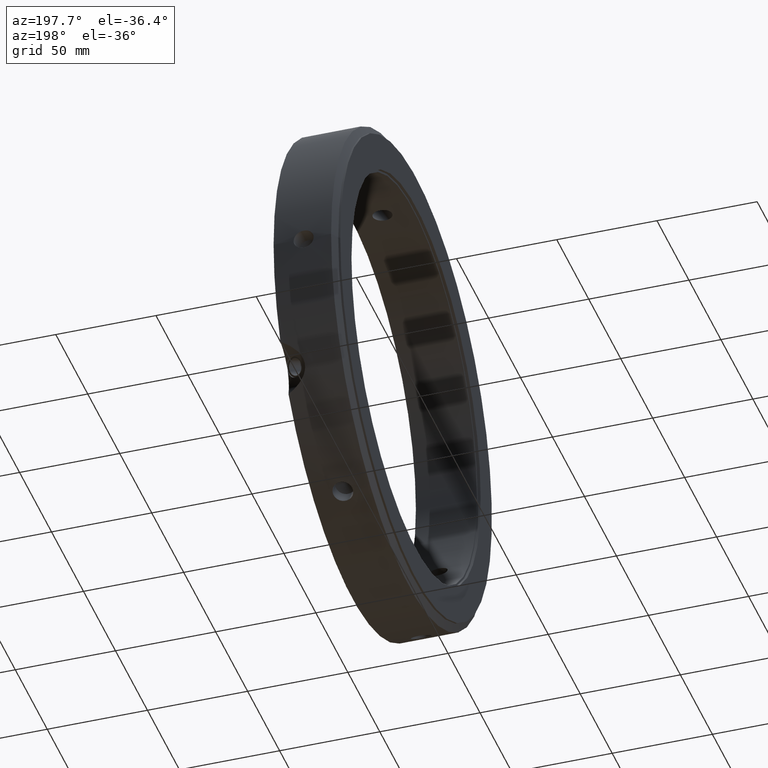
[diagram: clean part render]
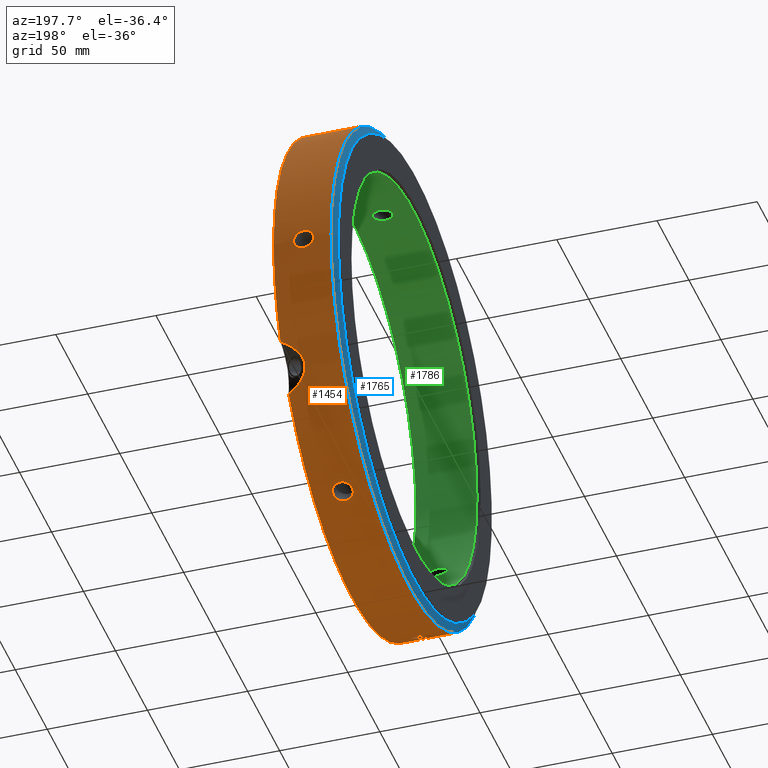
[diagram: same view with three faces highlighted in distinct colors, each labeled with its STEP entity id]
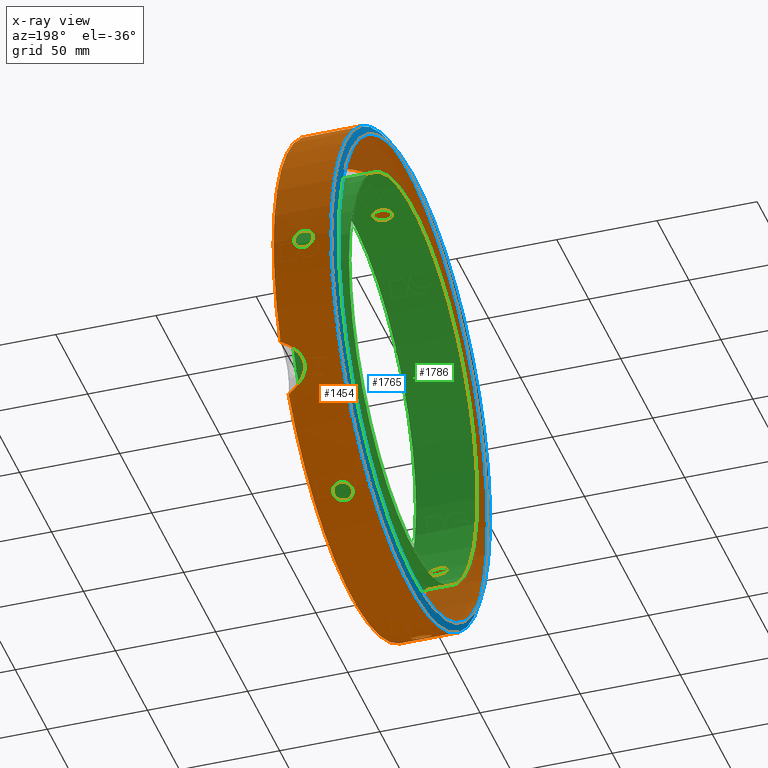
[diagram: x-ray of the same camera — body ghosted, the three highlighted faces saturated]
A machine part, auxiliary view with three faces highlighted in distinct colors.
The next image is the same camera in x-ray (body ghosted, the three faces saturated) — at least one of them is partly hidden behind the body in this view.
Their STEP definitions:

[orange] entity #1454 — the highlighted cylindrical surface (bore or boss wall) has radius 122.5 mm, axis along (1, 0, 0).
#152=CARTESIAN_POINT('',(11.999999999999977,61.250000000000099,106.08811196359368));
#153=VERTEX_POINT('',#152);
#154=CARTESIAN_POINT('',(21.999999999999975,61.250000000000107,106.08811196359368));
#155=VERTEX_POINT('',#154);
#156=CARTESIAN_POINT('',(11.999999999999977,61.250000000000107,106.08811196359368));
#157=CARTESIAN_POINT('',(11.999999999999977,61.79376517006024,105.77416899628349));
#158=CARTESIAN_POINT('',(12.125497419132332,62.371071950348352,105.43471371437946));
#159=CARTESIAN_POINT('',(12.635787448514456,63.428285494341168,104.80210909861688));
#160=CARTESIAN_POINT('',(13.020576197856379,63.908335067154887,104.50919534400404));
#161=CARTESIAN_POINT('',(13.908356031886274,64.664358287820875,104.04310630583957));
#162=CARTESIAN_POINT('',(14.470548014876421,64.990769629346204,103.83888989503696));
#163=CARTESIAN_POINT('',(15.702424050025297,65.423065611710101,103.56706849989109));
#164=CARTESIAN_POINT('',(16.372114006524537,65.529085343390534,103.49970518826922));
#165=CARTESIAN_POINT('',(17.627885993475417,65.529085343390534,103.49970518826922));
#166=CARTESIAN_POINT('',(18.297575949974657,65.423065611710101,103.56706849989109));
#167=CARTESIAN_POINT('',(19.529451985123533,64.990769629346204,103.83888989503696));
#168=CARTESIAN_POINT('',(20.091643968113676,64.664358287820875,104.04310630583957));
#169=CARTESIAN_POINT('',(20.979423802143572,63.908335067154894,104.50919534400406));
#170=CARTESIAN_POINT('',(21.364212551485497,63.428285494341168,104.80210909861688));
#171=CARTESIAN_POINT('',(21.874502580867627,62.371071950348345,105.43471371437947));
#172=CARTESIAN_POINT('',(21.999999999999975,61.79376517006024,105.77416899628349));
#173=CARTESIAN_POINT('',(21.999999999999975,61.250000000000107,106.08811196359368));
#174=B_SPLINE_CURVE_WITH_KNOTS('',3,(#156,#157,#158,#159,#160,#161,#162,#163,#164,#165,#166,#167,#168,#169,#170,#171,#172,#173),.UNSPECIFIED.,.F.,.U.,(4,2,2,2,2,2,2,2,4),(0.753463156857462,0.941828937243562,1.130194717629661,1.318560515672293,1.506926313714925,1.695292111757557,1.883657909800189,2.072023690186288,2.260389470572388),.UNSPECIFIED.);
#175=EDGE_CURVE('',#153,#155,#174,.T.);
#177=CARTESIAN_POINT('',(21.999999999999975,61.250000000000099,106.08811196359368));
#178=CARTESIAN_POINT('',(21.999999999999975,60.706234829939959,106.40205493090384));
#179=CARTESIAN_POINT('',(21.874502580867631,60.123604542218203,106.73228962745833));
#180=CARTESIAN_POINT('',(21.364212551485501,59.047146102420108,107.33156110589979));
#181=CARTESIAN_POINT('',(20.979423802143575,58.553450563400631,107.60083935372592));
#182=CARTESIAN_POINT('',(20.091643968113679,57.771794005591772,108.02253014959135));
#183=CARTESIAN_POINT('',(19.529451985123533,57.431731735204366,108.20310245803432));
#184=CARTESIAN_POINT('',(18.297575949974657,56.980179510533972,108.44157106314248));
#185=CARTESIAN_POINT('',(17.627885993475417,56.868831305546152,108.49970518826922));
#186=CARTESIAN_POINT('',(16.999999999999979,56.868831305546152,108.49970518826922));
#187=CARTESIAN_POINT('',(16.372114006524537,56.868831305546152,108.49970518826922));
#188=CARTESIAN_POINT('',(15.702424050025297,56.980179510533972,108.44157106314248));
#189=CARTESIAN_POINT('',(14.470548014876421,57.431731735204366,108.20310245803432));
#190=CARTESIAN_POINT('',(13.908356031886274,57.771794005591772,108.02253014959135));
#191=CARTESIAN_POINT('',(13.020576197856384,58.553450563400631,107.60083935372592));
#192=CARTESIAN_POINT('',(12.63578744851446,59.047146102420093,107.33156110589981));
#193=CARTESIAN_POINT('',(12.125497419132326,60.123604542218196,106.73228962745833));
#194=CARTESIAN_POINT('',(11.999999999999977,60.706234829939973,106.40205493090384));
#195=CARTESIAN_POINT('',(11.999999999999977,61.250000000000107,106.08811196359368));
#196=B_SPLINE_CURVE_WITH_KNOTS('',3,(#177,#178,#179,#180,#181,#182,#183,#184,#185,#186,#187,#188,#189,#190,#191,#192,#193,#194,#195),.UNSPECIFIED.,.F.,.U.,(4,2,2,2,3,2,2,2,4),(2.260389470572388,2.448755250958487,2.637121031344586,2.825486829387218,3.01385262742985,3.202218425472482,3.390584223515115,3.578950003901213,3.767315784287312),.UNSPECIFIED.);
#197=EDGE_CURVE('',#155,#153,#196,.T.);
#306=CARTESIAN_POINT('',(11.999999999999977,122.49999999999997,-8.160139E-014));
#307=VERTEX_POINT('',#306);
#308=CARTESIAN_POINT('',(21.999999999999975,122.49999999999997,-7.993606E-014));
#309=VERTEX_POINT('',#308);
#310=CARTESIAN_POINT('',(11.999999999999977,122.5,-7.313594E-014));
#311=CARTESIAN_POINT('',(11.999999999999977,122.5,-0.627885934620404));
#312=CARTESIAN_POINT('',(12.125497419132326,122.49467649256636,-1.297575913078934));
#313=CARTESIAN_POINT('',(12.635787448514456,122.47543159676107,-2.529452007282982));
#314=CARTESIAN_POINT('',(13.020576197856379,122.46178563055531,-3.09164400972195));
#315=CARTESIAN_POINT('',(13.908356031886271,122.43615229341245,-3.979423843751845));
#316=CARTESIAN_POINT('',(14.470548014876417,122.42250136455034,-4.364212562997444));
#317=CARTESIAN_POINT('',(15.702424050025295,122.40324512224387,-4.874502563251466));
#318=CARTESIAN_POINT('',(16.372114006524537,122.39791664893647,-5.000000000000073));
#319=CARTESIAN_POINT('',(17.627885993475417,122.39791664893647,-5.000000000000073));
#320=CARTESIAN_POINT('',(18.297575949974657,122.40324512224387,-4.874502563251466));
#321=CARTESIAN_POINT('',(19.529451985123533,122.42250136455034,-4.364212562997445));
#322=CARTESIAN_POINT('',(20.091643968113679,122.43615229341245,-3.979423843751846));
#323=CARTESIAN_POINT('',(20.979423802143575,122.46178563055531,-3.091644009721954));
#324=CARTESIAN_POINT('',(21.364212551485497,122.47543159676107,-2.529452007282985));
#325=CARTESIAN_POINT('',(21.874502580867627,122.49467649256636,-1.297575913078937));
#326=CARTESIAN_POINT('',(21.999999999999979,122.5,-0.627885934620406));
#327=CARTESIAN_POINT('',(21.999999999999979,122.5,-7.452372E-014));
#328=B_SPLINE_CURVE_WITH_KNOTS('',3,(#310,#311,#312,#313,#314,#315,#316,#317,#318,#319,#320,#321,#322,#323,#324,#325,#326,#327),.UNSPECIFIED.,.F.,.U.,(4,2,2,2,2,2,2,2,4),(0.753463156857463,0.941828937243562,1.130194717629661,1.318560515672294,1.506926313714926,1.695292111757558,1.883657909800189,2.072023690186289,2.260389470572388),.UNSPECIFIED.);
#329=EDGE_CURVE('',#307,#309,#328,.T.);
#331=CARTESIAN_POINT('',(21.999999999999979,122.5,-7.494005E-014));
#332=CARTESIAN_POINT('',(21.999999999999979,122.5,0.627885934620257));
#333=CARTESIAN_POINT('',(21.874502580867627,122.49467649256638,1.297575913078788));
#334=CARTESIAN_POINT('',(21.364212551485497,122.47543159676111,2.529452007282835));
#335=CARTESIAN_POINT('',(20.979423802143575,122.46178563055531,3.091644009721803));
#336=CARTESIAN_POINT('',(20.091643968113679,122.43615229341245,3.979423843751698));
#337=CARTESIAN_POINT('',(19.529451985123533,122.42250136455034,4.364212562997297));
#338=CARTESIAN_POINT('',(18.297575949974657,122.40324512224387,4.874502563251318));
#339=CARTESIAN_POINT('',(17.627885993475417,122.39791664893647,4.999999999999926));
#340=CARTESIAN_POINT('',(16.999999999999979,122.39791664893647,4.999999999999926));
#341=CARTESIAN_POINT('',(16.372114006524537,122.39791664893647,4.999999999999926));
#342=CARTESIAN_POINT('',(15.702424050025297,122.40324512224387,4.874502563251318));
#343=CARTESIAN_POINT('',(14.470548014876421,122.42250136455034,4.364212562997298));
#344=CARTESIAN_POINT('',(13.908356031886274,122.43615229341245,3.979423843751698));
#345=CARTESIAN_POINT('',(13.020576197856379,122.46178563055531,3.091644009721804));
#346=CARTESIAN_POINT('',(12.635787448514456,122.47543159676111,2.529452007282837));
#347=CARTESIAN_POINT('',(12.125497419132326,122.49467649256638,1.297575913078788));
#348=CARTESIAN_POINT('',(11.999999999999977,122.5,0.627885934620258));
#349=CARTESIAN_POINT('',(11.999999999999977,122.5,-7.341350E-014));
#350=B_SPLINE_CURVE_WITH_KNOTS('',3,(#331,#332,#333,#334,#335,#336,#337,#338,#339,#340,#341,#342,#343,#344,#345,#346,#347,#348,#349),.UNSPECIFIED.,.F.,.U.,(4,2,2,2,3,2,2,2,4),(2.260389470572388,2.448755250958488,2.637121031344587,2.825486829387219,3.013852627429851,3.202218425472483,3.390584223515115,3.578950003901214,3.767315784287314),.UNSPECIFIED.);
#351=EDGE_CURVE('',#309,#307,#350,.T.);
#460=CARTESIAN_POINT('',(11.999999999999977,61.249999999999964,-106.08811196359375));
#461=VERTEX_POINT('',#460);
#462=CARTESIAN_POINT('',(21.999999999999975,61.249999999999943,-106.08811196359375));
#463=VERTEX_POINT('',#462);
#464=CARTESIAN_POINT('',(11.999999999999975,61.249999999999972,-106.08811196359376));
#465=CARTESIAN_POINT('',(11.999999999999975,60.706234829939838,-106.40205493090392));
#466=CARTESIAN_POINT('',(12.125497419132326,60.123604542218061,-106.7322896274584));
#467=CARTESIAN_POINT('',(12.635787448514455,59.047146102419966,-107.33156110589987));
#468=CARTESIAN_POINT('',(13.020576197856379,58.553450563400503,-107.60083935372599));
#469=CARTESIAN_POINT('',(13.908356031886274,57.771794005591637,-108.02253014959143));
#470=CARTESIAN_POINT('',(14.470548014876421,57.431731735204217,-108.20310245803442));
#471=CARTESIAN_POINT('',(15.7024240500253,56.980179510533816,-108.44157106314258));
#472=CARTESIAN_POINT('',(16.372114006524537,56.868831305546017,-108.4997051882693));
#473=CARTESIAN_POINT('',(17.627885993475413,56.868831305546017,-108.4997051882693));
#474=CARTESIAN_POINT('',(18.29757594997465,56.98017951053383,-108.44157106314258));
#475=CARTESIAN_POINT('',(19.529451985123526,57.431731735204217,-108.20310245803442));
#476=CARTESIAN_POINT('',(20.091643968113672,57.77179400559163,-108.02253014959143));
#477=CARTESIAN_POINT('',(20.979423802143572,58.553450563400503,-107.60083935372599));
#478=CARTESIAN_POINT('',(21.364212551485497,59.047146102419966,-107.33156110589987));
#479=CARTESIAN_POINT('',(21.874502580867627,60.123604542218068,-106.7322896274584));
#480=CARTESIAN_POINT('',(21.999999999999975,60.706234829939831,-106.40205493090393));
#481=CARTESIAN_POINT('',(21.999999999999975,61.249999999999964,-106.08811196359376));
#482=B_SPLINE_CURVE_WITH_KNOTS('',3,(#464,#465,#466,#467,#468,#469,#470,#471,#472,#473,#474,#475,#476,#477,#478,#479,#480,#481),.UNSPECIFIED.,.F.,.U.,(4,2,2,2,2,2,2,2,4),(0.753463156857464,0.941828937243563,1.130194717629662,1.318560515672294,1.506926313714926,1.695292111757558,1.88365790980019,2.07202369018629,2.260389470572389),.UNSPECIFIED.);
#483=EDGE_CURVE('',#461,#463,#482,.T.);
#485=CARTESIAN_POINT('',(21.999999999999975,61.249999999999964,-106.08811196359376));
#486=CARTESIAN_POINT('',(21.999999999999975,61.793765170060098,-105.77416899628359));
#487=CARTESIAN_POINT('',(21.874502580867627,62.371071950348231,-105.43471371437957));
#488=CARTESIAN_POINT('',(21.364212551485497,63.428285494341054,-104.80210909861697));
#489=CARTESIAN_POINT('',(20.979423802143575,63.908335067154766,-104.50919534400411));
#490=CARTESIAN_POINT('',(20.091643968113679,64.664358287820747,-104.04310630583964));
#491=CARTESIAN_POINT('',(19.529451985123536,64.990769629346062,-103.83888989503703));
#492=CARTESIAN_POINT('',(18.297575949974657,65.423065611709973,-103.56706849989116));
#493=CARTESIAN_POINT('',(17.627885993475417,65.529085343390406,-103.49970518826929));
#494=CARTESIAN_POINT('',(16.999999999999979,65.529085343390406,-103.49970518826929));
#495=CARTESIAN_POINT('',(16.372114006524537,65.529085343390406,-103.49970518826929));
#496=CARTESIAN_POINT('',(15.702424050025297,65.423065611709973,-103.56706849989116));
#497=CARTESIAN_POINT('',(14.470548014876419,64.990769629346062,-103.83888989503703));
#498=CARTESIAN_POINT('',(13.908356031886274,64.664358287820747,-104.04310630583964));
#499=CARTESIAN_POINT('',(13.020576197856379,63.908335067154752,-104.5091953440041));
#500=CARTESIAN_POINT('',(12.635787448514462,63.428285494341068,-104.80210909861697));
#501=CARTESIAN_POINT('',(12.12549741913233,62.371071950348238,-105.43471371437957));
#502=CARTESIAN_POINT('',(11.999999999999979,61.793765170060119,-105.77416899628358));
#503=CARTESIAN_POINT('',(11.999999999999979,61.249999999999972,-106.08811196359375));
#504=B_SPLINE_CURVE_WITH_KNOTS('',3,(#485,#486,#487,#488,#489,#490,#491,#492,#493,#494,#495,#496,#497,#498,#499,#500,#501,#502,#503),.UNSPECIFIED.,.F.,.U.,(4,2,2,2,3,2,2,2,4),(2.260389470572389,2.448755250958489,2.637121031344589,2.825486829387221,3.013852627429853,3.202218425472485,3.390584223515117,3.578950003901217,3.767315784287317),.UNSPECIFIED.);
#505=EDGE_CURVE('',#463,#461,#504,.T.);
#614=CARTESIAN_POINT('',(11.999999999999977,-61.250000000000028,-106.08811196359369));
#615=VERTEX_POINT('',#614);
#616=CARTESIAN_POINT('',(21.999999999999975,-61.250000000000036,-106.08811196359369));
#617=VERTEX_POINT('',#616);
#618=CARTESIAN_POINT('',(11.999999999999977,-61.250000000000036,-106.0881119635937));
#619=CARTESIAN_POINT('',(11.999999999999977,-61.793765170060183,-105.77416899628354));
#620=CARTESIAN_POINT('',(12.125497419132333,-62.371071950348302,-105.43471371437948));
#621=CARTESIAN_POINT('',(12.63578744851446,-63.428285494341111,-104.80210909861691));
#622=CARTESIAN_POINT('',(13.020576197856379,-63.908335067154837,-104.5091953440041));
#623=CARTESIAN_POINT('',(13.908356031886274,-64.664358287820818,-104.04310630583964));
#624=CARTESIAN_POINT('',(14.470548014876421,-64.990769629346119,-103.838889895037));
#625=CARTESIAN_POINT('',(15.702424050025297,-65.42306561171003,-103.56706849989112));
#626=CARTESIAN_POINT('',(16.372114006524537,-65.529085343390477,-103.49970518826925));
#627=CARTESIAN_POINT('',(17.627885993475417,-65.529085343390477,-103.49970518826925));
#628=CARTESIAN_POINT('',(18.297575949974657,-65.42306561171003,-103.56706849989112));
#629=CARTESIAN_POINT('',(19.529451985123533,-64.990769629346119,-103.838889895037));
#630=CARTESIAN_POINT('',(20.091643968113679,-64.664358287820818,-104.04310630583964));
#631=CARTESIAN_POINT('',(20.979423802143575,-63.908335067154837,-104.5091953440041));
#632=CARTESIAN_POINT('',(21.364212551485497,-63.428285494341111,-104.80210909861691));
#633=CARTESIAN_POINT('',(21.874502580867624,-62.371071950348302,-105.43471371437948));
#634=CARTESIAN_POINT('',(21.999999999999975,-61.793765170060183,-105.77416899628354));
#635=CARTESIAN_POINT('',(21.999999999999975,-61.250000000000036,-106.0881119635937));
#636=B_SPLINE_CURVE_WITH_KNOTS('',3,(#618,#619,#620,#621,#622,#623,#624,#625,#626,#627,#628,#629,#630,#631,#632,#633,#634,#635),.UNSPECIFIED.,.F.,.U.,(4,2,2,2,2,2,2,2,4),(0.753463156857463,0.941828937243562,1.130194717629662,1.318560515672294,1.506926313714927,1.695292111757559,1.883657909800191,2.072023690186291,2.26038947057239),.UNSPECIFIED.);
#637=EDGE_CURVE('',#615,#617,#636,.T.);
#639=CARTESIAN_POINT('',(21.999999999999975,-61.250000000000043,-106.0881119635937));
#640=CARTESIAN_POINT('',(21.999999999999975,-60.706234829939902,-106.40205493090389));
#641=CARTESIAN_POINT('',(21.874502580867627,-60.123604542218132,-106.7322896274584));
#642=CARTESIAN_POINT('',(21.364212551485494,-59.047146102420037,-107.33156110589987));
#643=CARTESIAN_POINT('',(20.979423802143575,-58.553450563400574,-107.60083935372599));
#644=CARTESIAN_POINT('',(20.091643968113679,-57.771794005591715,-108.02253014959142));
#645=CARTESIAN_POINT('',(19.529451985123533,-57.431731735204295,-108.20310245803435));
#646=CARTESIAN_POINT('',(18.297575949974657,-56.980179510533901,-108.4415710631425));
#647=CARTESIAN_POINT('',(17.627885993475417,-56.868831305546088,-108.49970518826925));
#648=CARTESIAN_POINT('',(16.999999999999979,-56.868831305546088,-108.49970518826925));
#649=CARTESIAN_POINT('',(16.372114006524537,-56.868831305546088,-108.49970518826925));
#650=CARTESIAN_POINT('',(15.702424050025297,-56.980179510533901,-108.4415710631425));
#651=CARTESIAN_POINT('',(14.470548014876421,-57.431731735204295,-108.20310245803435));
#652=CARTESIAN_POINT('',(13.908356031886274,-57.771794005591715,-108.02253014959142));
#653=CARTESIAN_POINT('',(13.020576197856379,-58.553450563400574,-107.60083935372599));
#654=CARTESIAN_POINT('',(12.635787448514455,-59.047146102420044,-107.33156110589982));
#655=CARTESIAN_POINT('',(12.125497419132325,-60.123604542218146,-106.73228962745837));
#656=CARTESIAN_POINT('',(11.999999999999975,-60.706234829939888,-106.40205493090389));
#657=CARTESIAN_POINT('',(11.999999999999975,-61.250000000000036,-106.0881119635937));
#658=B_SPLINE_CURVE_WITH_KNOTS('',3,(#639,#640,#641,#642,#643,#644,#645,#646,#647,#648,#649,#650,#651,#652,#653,#654,#655,#656,#657),.UNSPECIFIED.,.F.,.U.,(4,2,2,2,3,2,2,2,4),(2.26038947057239,2.44875525095849,2.63712103134459,2.825486829387221,3.013852627429853,3.202218425472485,3.390584223515116,3.578950003901216,3.767315784287316),.UNSPECIFIED.);
#659=EDGE_CURVE('',#617,#615,#658,.T.);
#768=CARTESIAN_POINT('',(11.999999999999977,-122.49999999999999,3.400058E-014));
#769=VERTEX_POINT('',#768);
#770=CARTESIAN_POINT('',(21.999999999999975,-122.49999999999999,2.664535E-014));
#771=VERTEX_POINT('',#770);
#772=CARTESIAN_POINT('',(11.999999999999977,-122.5,3.594347E-014));
#773=CARTESIAN_POINT('',(11.999999999999977,-122.5,0.627885934620368));
#774=CARTESIAN_POINT('',(12.125497419132326,-122.49467649256638,1.297575913078897));
#775=CARTESIAN_POINT('',(12.635787448514456,-122.47543159676111,2.529452007282946));
#776=CARTESIAN_POINT('',(13.020576197856379,-122.46178563055531,3.091644009721914));
#777=CARTESIAN_POINT('',(13.908356031886274,-122.43615229341245,3.979423843751808));
#778=CARTESIAN_POINT('',(14.470548014876421,-122.42250136455034,4.364212562997409));
#779=CARTESIAN_POINT('',(15.702424050025297,-122.40324512224387,4.874502563251429));
#780=CARTESIAN_POINT('',(16.372114006524537,-122.39791664893647,5.000000000000036));
#781=CARTESIAN_POINT('',(17.627885993475417,-122.39791664893647,5.000000000000036));
#782=CARTESIAN_POINT('',(18.297575949974657,-122.40324512224387,4.874502563251429));
#783=CARTESIAN_POINT('',(19.529451985123533,-122.42250136455034,4.364212562997409));
#784=CARTESIAN_POINT('',(20.091643968113679,-122.43615229341245,3.97942384375181));
#785=CARTESIAN_POINT('',(20.979423802143575,-122.46178563055531,3.091644009721915));
#786=CARTESIAN_POINT('',(21.364212551485497,-122.47543159676111,2.529452007282948));
#787=CARTESIAN_POINT('',(21.874502580867627,-122.49467649256638,1.2975759130789));
#788=CARTESIAN_POINT('',(21.999999999999979,-122.5,0.627885934620369));
#789=CARTESIAN_POINT('',(21.999999999999979,-122.5,3.719247E-014));
#790=B_SPLINE_CURVE_WITH_KNOTS('',3,(#772,#773,#774,#775,#776,#777,#778,#779,#780,#781,#782,#783,#784,#785,#786,#787,#788,#789),.UNSPECIFIED.,.F.,.U.,(4,2,2,2,2,2,2,2,4),(0.753463156857463,0.941828937243562,1.130194717629662,1.318560515672294,1.506926313714926,1.695292111757558,1.88365790980019,2.072023690186289,2.260389470572389),.UNSPECIFIED.);
#791=EDGE_CURVE('',#769,#771,#790,.T.);
#793=CARTESIAN_POINT('',(21.999999999999979,-122.5,3.830269E-014));
#794=CARTESIAN_POINT('',(21.999999999999979,-122.5,-0.627885934620293));
#795=CARTESIAN_POINT('',(21.874502580867627,-122.49467649256638,-1.297575913078825));
#796=CARTESIAN_POINT('',(21.364212551485497,-122.47543159676111,-2.529452007282873));
#797=CARTESIAN_POINT('',(20.979423802143575,-122.46178563055531,-3.091644009721841));
#798=CARTESIAN_POINT('',(20.091643968113679,-122.43615229341245,-3.979423843751734));
#799=CARTESIAN_POINT('',(19.529451985123536,-122.42250136455034,-4.364212562997333));
#800=CARTESIAN_POINT('',(18.297575949974661,-122.40324512224387,-4.874502563251355));
#801=CARTESIAN_POINT('',(17.627885993475417,-122.39791664893647,-4.999999999999965));
#802=CARTESIAN_POINT('',(16.999999999999979,-122.39791664893647,-4.999999999999964));
#803=CARTESIAN_POINT('',(16.372114006524537,-122.39791664893647,-4.999999999999964));
#804=CARTESIAN_POINT('',(15.702424050025297,-122.40324512224387,-4.874502563251355));
#805=CARTESIAN_POINT('',(14.470548014876421,-122.42250136455034,-4.364212562997335));
#806=CARTESIAN_POINT('',(13.908356031886274,-122.43615229341245,-3.979423843751736));
#807=CARTESIAN_POINT('',(13.020576197856379,-122.46178563055531,-3.091644009721843));
#808=CARTESIAN_POINT('',(12.635787448514456,-122.47543159676111,-2.529452007282873));
#809=CARTESIAN_POINT('',(12.125497419132326,-122.49467649256638,-1.297575913078825));
#810=CARTESIAN_POINT('',(11.999999999999977,-122.5,-0.627885934620295));
#811=CARTESIAN_POINT('',(11.999999999999977,-122.5,3.622103E-014));
#812=B_SPLINE_CURVE_WITH_KNOTS('',3,(#793,#794,#795,#796,#797,#798,#799,#800,#801,#802,#803,#804,#805,#806,#807,#808,#809,#810,#811),.UNSPECIFIED.,.F.,.U.,(4,2,2,2,3,2,2,2,4),(2.260389470572389,2.448755250958488,2.637121031344587,2.825486829387219,3.013852627429851,3.202218425472483,3.390584223515115,3.578950003901214,3.767315784287314),.UNSPECIFIED.);
#813=EDGE_CURVE('',#771,#769,#812,.T.);
#932=CARTESIAN_POINT('',(11.999999999999977,-61.249999999999986,106.08811196359372));
#933=VERTEX_POINT('',#932);
#934=CARTESIAN_POINT('',(21.999999999999975,-61.249999999999972,106.08811196359372));
#935=VERTEX_POINT('',#934);
#936=CARTESIAN_POINT('',(11.999999999999977,-61.249999999999972,106.08811196359376));
#937=CARTESIAN_POINT('',(11.999999999999977,-60.706234829939838,106.40205493090393));
#938=CARTESIAN_POINT('',(12.12549741913233,-60.123604542218075,106.73228962745841));
#939=CARTESIAN_POINT('',(12.635787448514453,-59.047146102419994,107.33156110589988));
#940=CARTESIAN_POINT('',(13.020576197856384,-58.553450563400524,107.60083935372599));
#941=CARTESIAN_POINT('',(13.908356031886273,-57.771794005591644,108.02253014959142));
#942=CARTESIAN_POINT('',(14.470548014876417,-57.431731735204245,108.20310245803441));
#943=CARTESIAN_POINT('',(15.702424050025297,-56.980179510533844,108.44157106314256));
#944=CARTESIAN_POINT('',(16.372114006524537,-56.868831305546017,108.49970518826929));
#945=CARTESIAN_POINT('',(17.627885993475417,-56.868831305546024,108.49970518826929));
#946=CARTESIAN_POINT('',(18.297575949974661,-56.980179510533837,108.44157106314256));
#947=CARTESIAN_POINT('',(19.529451985123533,-57.431731735204238,108.20310245803441));
#948=CARTESIAN_POINT('',(20.091643968113676,-57.771794005591659,108.02253014959142));
#949=CARTESIAN_POINT('',(20.979423802143565,-58.553450563400524,107.60083935372599));
#950=CARTESIAN_POINT('',(21.364212551485501,-59.047146102419994,107.33156110589987));
#951=CARTESIAN_POINT('',(21.874502580867627,-60.123604542218096,106.7322896274584));
#952=CARTESIAN_POINT('',(21.999999999999979,-60.706234829939838,106.40205493090392));
#953=CARTESIAN_POINT('',(21.999999999999979,-61.249999999999986,106.08811196359375));
#954=B_SPLINE_CURVE_WITH_KNOTS('',3,(#936,#937,#938,#939,#940,#941,#942,#943,#944,#945,#946,#947,#948,#949,#950,#951,#952,#953),.UNSPECIFIED.,.F.,.U.,(4,2,2,2,2,2,2,2,4),(0.753463156857463,0.941828937243562,1.130194717629661,1.318560515672293,1.506926313714925,1.695292111757558,1.88365790980019,2.072023690186289,2.260389470572388),.UNSPECIFIED.);
#955=EDGE_CURVE('',#933,#935,#954,.T.);
#957=CARTESIAN_POINT('',(21.999999999999975,-61.249999999999986,106.08811196359375));
#958=CARTESIAN_POINT('',(21.999999999999975,-61.793765170060126,105.77416899628358));
#959=CARTESIAN_POINT('',(21.874502580867624,-62.371071950348245,105.43471371437953));
#960=CARTESIAN_POINT('',(21.364212551485497,-63.428285494341061,104.80210909861695));
#961=CARTESIAN_POINT('',(20.979423802143575,-63.908335067154773,104.50919534400411));
#962=CARTESIAN_POINT('',(20.091643968113679,-64.664358287820747,104.04310630583964));
#963=CARTESIAN_POINT('',(19.529451985123533,-64.990769629346076,103.83888989503703));
#964=CARTESIAN_POINT('',(18.29757594997465,-65.423065611709987,103.56706849989116));
#965=CARTESIAN_POINT('',(17.627885993475417,-65.52908534339042,103.49970518826929));
#966=CARTESIAN_POINT('',(16.999999999999979,-65.52908534339042,103.49970518826929));
#967=CARTESIAN_POINT('',(16.372114006524537,-65.52908534339042,103.49970518826929));
#968=CARTESIAN_POINT('',(15.702424050025304,-65.423065611709987,103.56706849989116));
#969=CARTESIAN_POINT('',(14.470548014876423,-64.990769629346076,103.83888989503703));
#970=CARTESIAN_POINT('',(13.908356031886274,-64.664358287820747,104.04310630583964));
#971=CARTESIAN_POINT('',(13.020576197856379,-63.908335067154773,104.50919534400411));
#972=CARTESIAN_POINT('',(12.63578744851446,-63.428285494341068,104.80210909861695));
#973=CARTESIAN_POINT('',(12.125497419132333,-62.371071950348252,105.43471371437953));
#974=CARTESIAN_POINT('',(11.999999999999977,-61.793765170060119,105.77416899628358));
#975=CARTESIAN_POINT('',(11.999999999999977,-61.249999999999964,106.08811196359375));
#976=B_SPLINE_CURVE_WITH_KNOTS('',3,(#957,#958,#959,#960,#961,#962,#963,#964,#965,#966,#967,#968,#969,#970,#971,#972,#973,#974,#975),.UNSPECIFIED.,.F.,.U.,(4,2,2,2,3,2,2,2,4),(2.260389470572388,2.448755250958487,2.637121031344587,2.825486829387219,3.013852627429851,3.202218425472483,3.390584223515115,3.578950003901214,3.767315784287314),.UNSPECIFIED.);
#977=EDGE_CURVE('',#935,#933,#976,.T.);
#999=CARTESIAN_POINT('',(31.999999999999972,111.89980988498361,-49.846590131166693));
#1000=VERTEX_POINT('',#999);
#1048=CARTESIAN_POINT('',(31.999999999999975,99.118318288112803,-71.984782973461577));
#1049=VERTEX_POINT('',#1048);
#1057=CARTESIAN_POINT('',(31.999999999999964,111.89980988498361,-49.846590131166693));
#1058=CARTESIAN_POINT('',(30.81565441403243,111.63695646299006,-50.43666555801731));
#1059=CARTESIAN_POINT('',(29.681177333572776,111.348931040916,-51.070917848905388));
#1060=CARTESIAN_POINT('',(26.845053840889875,110.49995752256359,-52.892133179715259));
#1061=CARTESIAN_POINT('',(25.060363010353836,109.81941463706532,-54.30706931021934));
#1062=CARTESIAN_POINT('',(23.092507229571329,108.57320153726434,-56.735684032678094));
#1063=CARTESIAN_POINT('',(22.553073530183308,108.11998455855016,-57.596478145640319));
#1064=CARTESIAN_POINT('',(21.810438477332269,107.14830243816675,-59.38456567556652));
#1065=CARTESIAN_POINT('',(21.607695154586803,106.6296856400925,-60.311966876262247));
#1066=CARTESIAN_POINT('',(21.607695154586803,105.54653828709489,-62.18803312373786));
#1067=CARTESIAN_POINT('',(21.810438477332283,105.0026936868293,-63.100869046047364));
#1068=CARTESIAN_POINT('',(22.553073530183319,103.94000552191477,-64.836414211665627));
#1069=CARTESIAN_POINT('',(23.092507229571304,103.42114444201852,-65.659308685139663));
#1070=CARTESIAN_POINT('',(25.060363010353811,101.9410089462648,-67.952868249325647));
#1071=CARTESIAN_POINT('',(26.845053840889879,101.05590975526493,-69.249703741783918));
#1072=CARTESIAN_POINT('',(29.681177333572784,99.90317777219812,-70.895544041222266));
#1073=CARTESIAN_POINT('',(30.815654414032426,99.497911886917592,-71.462107519118192));
#1074=CARTESIAN_POINT('',(31.999999999999964,99.118318288112789,-71.984782973461591));
#1075=B_SPLINE_CURVE_WITH_KNOTS('',3,(#1057,#1058,#1059,#1060,#1061,#1062,#1063,#1064,#1065,#1066,#1067,#1068,#1069,#1070,#1071,#1072,#1073,#1074),.UNSPECIFIED.,.F.,.U.,(4,2,2,2,2,2,2,2,4),(2.451643952885091,2.84449520196116,3.49438361375973,3.819327819659016,4.144272025558301,4.469216231457586,4.794160437356871,5.44404884915544,5.836900098231507),.UNSPECIFIED.);
#1076=EDGE_CURVE('',#1000,#1049,#1075,.T.);
#1185=CARTESIAN_POINT('',(31.999999999999979,-99.11831828811286,-71.98478297346152));
#1186=VERTEX_POINT('',#1185);
#1234=CARTESIAN_POINT('',(31.999999999999972,-111.89980988498364,-49.846590131166622));
#1235=VERTEX_POINT('',#1234);
#1243=CARTESIAN_POINT('',(31.999999999999975,-99.118318288112818,-71.984782973461535));
#1244=CARTESIAN_POINT('',(30.748729086357173,-99.51936206690263,-71.432572030098541));
#1245=CARTESIAN_POINT('',(29.553168217160099,-99.949003461362025,-70.831472957238532));
#1246=CARTESIAN_POINT('',(26.705750889577217,-101.12345823339299,-69.150868580795603));
#1247=CARTESIAN_POINT('',(24.964609246291467,-101.99950682370918,-67.864482353227189));
#1248=CARTESIAN_POINT('',(23.048669702967089,-103.46137305879246,-65.595759453456012));
#1249=CARTESIAN_POINT('',(22.524285507772348,-103.9734044472945,-64.782622310481273));
#1250=CARTESIAN_POINT('',(21.803547101939831,-105.02074343427276,-63.070598811466269));
#1251=CARTESIAN_POINT('',(21.607695154586743,-105.55607471768442,-62.171515541433934));
#1252=CARTESIAN_POINT('',(21.607695154586743,-106.6201492095031,-60.328484458565981));
#1253=CARTESIAN_POINT('',(21.803547101939866,-107.13111251976284,-59.415332332674787));
#1254=CARTESIAN_POINT('',(22.52428550777239,-108.09009886829659,-57.652298414070245));
#1255=CARTESIAN_POINT('',(23.048669702967093,-108.53828059662241,-56.802297652605091));
#1256=CARTESIAN_POINT('',(24.964609246291477,-109.77211914443012,-54.401922906202671));
#1257=CARTESIAN_POINT('',(26.70575088957726,-110.44813800142471,-53.00004945825512));
#1258=CARTESIAN_POINT('',(29.553168217160135,-111.31635669912008,-51.14263960185896));
#1259=CARTESIAN_POINT('',(30.748729086357173,-111.62210306917842,-50.470009703309771));
#1260=CARTESIAN_POINT('',(31.999999999999961,-111.89980988498364,-49.846590131166607));
#1261=B_SPLINE_CURVE_WITH_KNOTS('',3,(#1243,#1244,#1245,#1246,#1247,#1248,#1249,#1250,#1251,#1252,#1253,#1254,#1255,#1256,#1257,#1258,#1259,#1260),.UNSPECIFIED.,.F.,.U.,(4,2,2,2,2,2,2,2,4),(2.378816491465658,2.793006798033454,3.43145149312465,3.750673840670247,4.069896188215845,4.389118535761442,4.708340883307041,5.346785578398237,5.760975884966029),.UNSPECIFIED.);
#1262=EDGE_CURVE('',#1186,#1235,#1261,.T.);
#1364=CARTESIAN_POINT('',(17.654700538379213,0.0,0.0));
#1365=DIRECTION('',(1.0,0.0,0.0));
#1366=DIRECTION('',(0.0,1.0,0.0));
#1367=AXIS2_PLACEMENT_3D('',#1364,#1365,#1366);
#1368=CYLINDRICAL_SURFACE('',#1367,122.5);
#1369=CARTESIAN_POINT('',(3.309401076758454,122.5,0.0));
#1370=VERTEX_POINT('',#1369);
#1371=CARTESIAN_POINT('',(3.309401076758454,0.0,0.0));
#1372=DIRECTION('',(1.0,0.0,0.0));
#1373=DIRECTION('',(0.0,1.0,0.0));
#1374=AXIS2_PLACEMENT_3D('',#1371,#1372,#1373);
#1375=CIRCLE('',#1374,122.5);
#1376=EDGE_CURVE('',#1370,#1370,#1375,.T.);
#1377=ORIENTED_EDGE('',*,*,#1376,.T.);
#1378=EDGE_LOOP('',(#1377));
#1379=FACE_OUTER_BOUND('',#1378,.T.);
#1380=ORIENTED_EDGE('',*,*,#175,.T.);
#1381=ORIENTED_EDGE('',*,*,#197,.T.);
#1382=EDGE_LOOP('',(#1380,#1381));
#1383=FACE_BOUND('',#1382,.T.);
#1384=ORIENTED_EDGE('',*,*,#329,.T.);
#1385=ORIENTED_EDGE('',*,*,#351,.T.);
#1386=EDGE_LOOP('',(#1384,#1385));
#1387=FACE_BOUND('',#1386,.T.);
#1388=ORIENTED_EDGE('',*,*,#483,.T.);
#1389=ORIENTED_EDGE('',*,*,#505,.T.);
#1390=EDGE_LOOP('',(#1388,#1389));
#1391=FACE_BOUND('',#1390,.T.);
#1392=ORIENTED_EDGE('',*,*,#637,.T.);
#1393=ORIENTED_EDGE('',*,*,#659,.T.);
#1394=EDGE_LOOP('',(#1392,#1393));
#1395=FACE_BOUND('',#1394,.T.);
#1396=ORIENTED_EDGE('',*,*,#791,.T.);
#1397=ORIENTED_EDGE('',*,*,#813,.T.);
#1398=EDGE_LOOP('',(#1396,#1397));
#1399=FACE_BOUND('',#1398,.T.);
#1400=ORIENTED_EDGE('',*,*,#955,.T.);
#1401=ORIENTED_EDGE('',*,*,#977,.T.);
#1402=EDGE_LOOP('',(#1400,#1401));
#1403=FACE_BOUND('',#1402,.T.);
#1404=ORIENTED_EDGE('',*,*,#1076,.T.);
#1405=CARTESIAN_POINT('',(31.999999999999975,0.0,0.0));
#1406=DIRECTION('',(1.0,0.0,0.0));
#1407=DIRECTION('',(0.0,1.0,0.0));
#1408=AXIS2_PLACEMENT_3D('',#1405,#1406,#1407);
#1409=CIRCLE('',#1408,122.5);
#1410=EDGE_CURVE('',#1186,#1049,#1409,.T.);
#1411=ORIENTED_EDGE('',*,*,#1410,.F.);
#1412=ORIENTED_EDGE('',*,*,#1262,.T.);
#1413=CARTESIAN_POINT('',(31.999999999999975,-12.781491596870836,121.83137310462818));
#1414=VERTEX_POINT('',#1413);
#1415=CARTESIAN_POINT('',(31.999999999999975,0.0,0.0));
#1416=DIRECTION('',(1.0,0.0,0.0));
#1417=DIRECTION('',(0.0,1.0,0.0));
#1418=AXIS2_PLACEMENT_3D('',#1415,#1416,#1417);
#1419=CIRCLE('',#1418,122.5);
#1420=EDGE_CURVE('',#1414,#1235,#1419,.T.);
#1421=ORIENTED_EDGE('',*,*,#1420,.F.);
#1422=CARTESIAN_POINT('',(31.999999999999975,12.781491596870836,121.83137310462818));
#1423=VERTEX_POINT('',#1422);
#1424=CARTESIAN_POINT('',(31.999999999999986,-12.781491596870833,121.83137310462818));
#1425=CARTESIAN_POINT('',(29.91776002283634,-11.651982705407214,121.94987138661368));
#1426=CARTESIAN_POINT('',(27.982086055702059,-10.363941972506707,122.06987762988339));
#1427=CARTESIAN_POINT('',(25.08243845419188,-7.767541711710095,122.25856798109024));
#1428=CARTESIAN_POINT('',(23.859704040009447,-6.40693099358147,122.34183151230573));
#1429=CARTESIAN_POINT('',(22.551382366512676,-4.122766653669171,122.43297533136712));
#1430=CARTESIAN_POINT('',(22.201150943443679,-3.320330128471269,122.45775420139653));
#1431=CARTESIAN_POINT('',(21.729053159816164,-1.676097734017024,122.49129296681551));
#1432=CARTESIAN_POINT('',(21.607695154586743,-0.834154868720933,122.5));
#1433=CARTESIAN_POINT('',(21.607695154586743,0.834154868720934,122.5));
#1434=CARTESIAN_POINT('',(21.729053159816164,1.676097734017024,122.49129296681551));
#1435=CARTESIAN_POINT('',(22.201150943443679,3.320330128471269,122.45775420139653));
#1436=CARTESIAN_POINT('',(22.551382366512676,4.122766653669171,122.43297533136712));
#1437=CARTESIAN_POINT('',(23.859704040009447,6.40693099358147,122.34183151230573));
#1438=CARTESIAN_POINT('',(25.08243845419188,7.767541711710095,122.25856798109024));
#1439=CARTESIAN_POINT('',(27.982086055702059,10.363941972506709,122.06987762988339));
#1440=CARTESIAN_POINT('',(29.917760022836333,11.65198270540721,121.94987138661368));
#1441=CARTESIAN_POINT('',(31.999999999999979,12.781491596870831,121.83137310462818));
#1442=B_SPLINE_CURVE_WITH_KNOTS('',3,(#1424,#1425,#1426,#1427,#1428,#1429,#1430,#1431,#1432,#1433,#1434,#1435,#1436,#1437,#1438,#1439,#1440,#1441),.UNSPECIFIED.,.F.,.U.,(4,2,2,2,2,2,2,2,4),(1.431555389355638,2.100094936374592,2.600587857607153,2.850834318223433,3.101080778839713,3.351327239455993,3.601573700072274,4.102066621304834,4.770606168323789),.UNSPECIFIED.);
#1443=EDGE_CURVE('',#1414,#1423,#1442,.T.);
#1444=ORIENTED_EDGE('',*,*,#1443,.T.);
#1445=CARTESIAN_POINT('',(31.999999999999975,0.0,0.0));
#1446=DIRECTION('',(1.0,0.0,0.0));
#1447=DIRECTION('',(0.0,1.0,0.0));
#1448=AXIS2_PLACEMENT_3D('',#1445,#1446,#1447);
#1449=CIRCLE('',#1448,122.5);
#1450=EDGE_CURVE('',#1000,#1423,#1449,.T.);
#1451=ORIENTED_EDGE('',*,*,#1450,.F.);
#1452=EDGE_LOOP('',(#1404,#1411,#1412,#1421,#1444,#1451));
#1453=FACE_BOUND('',#1452,.T.);
#1454=ADVANCED_FACE('',(#1379,#1383,#1387,#1391,#1395,#1399,#1403,#1453),#1368,.T.);

[blue] entity #1765 — the highlighted conical surface has half-angle 60 deg.
#1369=CARTESIAN_POINT('',(3.309401076758454,122.5,0.0));
#1370=VERTEX_POINT('',#1369);
#1371=CARTESIAN_POINT('',(3.309401076758454,0.0,0.0));
#1372=DIRECTION('',(1.0,0.0,0.0));
#1373=DIRECTION('',(0.0,1.0,0.0));
#1374=AXIS2_PLACEMENT_3D('',#1371,#1372,#1373);
#1375=CIRCLE('',#1374,122.5);
#1376=EDGE_CURVE('',#1370,#1370,#1375,.T.);
#1739=CARTESIAN_POINT('',(0.999999999999964,118.50000000000001,0.0));
#1740=VERTEX_POINT('',#1739);
#1741=CARTESIAN_POINT('',(0.999999999999964,0.0,0.0));
#1742=DIRECTION('',(1.0,0.0,0.0));
#1743=DIRECTION('',(0.0,1.0,0.0));
#1744=AXIS2_PLACEMENT_3D('',#1741,#1742,#1743);
#1745=CIRCLE('',#1744,118.50000000000001);
#1746=EDGE_CURVE('',#1740,#1740,#1745,.T.);
#1754=CARTESIAN_POINT('',(2.154700538379209,0.0,0.0));
#1755=DIRECTION('',(1.0,0.0,0.0));
#1756=DIRECTION('',(0.0,1.0,0.0));
#1757=AXIS2_PLACEMENT_3D('',#1754,#1755,#1756);
#1758=CONICAL_SURFACE('',#1757,120.5,60.000000000000057);
#1759=ORIENTED_EDGE('',*,*,#1376,.F.);
#1760=EDGE_LOOP('',(#1759));
#1761=FACE_OUTER_BOUND('',#1760,.T.);
#1762=ORIENTED_EDGE('',*,*,#1746,.T.);
#1763=EDGE_LOOP('',(#1762));
#1764=FACE_BOUND('',#1763,.T.);
#1765=ADVANCED_FACE('',(#1761,#1764),#1758,.T.);

[green] entity #1786 — the highlighted cylindrical surface (bore or boss wall) has radius 100 mm, axis along (1, 0, 0).
#1086=CARTESIAN_POINT('',(16.684372973391476,88.620559460087122,-46.329218005284318));
#1087=VERTEX_POINT('',#1086);
#1088=CARTESIAN_POINT('',(16.684372973391476,88.620559460087122,-46.329218005284318));
#1089=CARTESIAN_POINT('',(17.301736549103897,88.620559460087122,-46.329218005284318));
#1090=CARTESIAN_POINT('',(17.965284583844927,88.570690629439156,-46.425034145544458));
#1091=CARTESIAN_POINT('',(19.201983576704336,88.360032590638525,-46.824733579744091));
#1092=CARTESIAN_POINT('',(19.775120572174671,88.199043479785757,-47.12855469064916));
#1093=CARTESIAN_POINT('',(20.620067733240695,87.835238514879023,-47.802660245147059));
#1094=CARTESIAN_POINT('',(20.971979037350351,87.620778527835839,-48.195935186991591));
#1095=CARTESIAN_POINT('',(21.44785326141227,87.135433888437106,-49.067964703556143));
#1096=CARTESIAN_POINT('',(21.570912773694928,86.864101533570988,-49.546962790033469));
#1097=CARTESIAN_POINT('',(21.570912773694928,86.340979223316694,-50.453037209966674));
#1098=CARTESIAN_POINT('',(21.44785326141227,86.061820889496246,-50.927516965388051));
#1099=CARTESIAN_POINT('',(20.971979037350351,85.549293495000867,-51.783852510980225));
#1100=CARTESIAN_POINT('',(20.620067733240688,85.315937398213265,-52.16621777877716));
#1101=CARTESIAN_POINT('',(19.775120572174668,84.914047345639261,-52.818334897658232));
#1102=CARTESIAN_POINT('',(19.201983576704333,84.731425100815855,-53.10966611284195));
#1103=CARTESIAN_POINT('',(17.965284583844923,84.490604256320992,-53.491951043054513));
#1104=CARTESIAN_POINT('',(17.301736549103897,84.43255946008712,-53.58304678738277));
#1105=CARTESIAN_POINT('',(16.077148058627962,84.43255946008712,-53.58304678738277));
#1106=CARTESIAN_POINT('',(15.42392586276889,84.48886470290131,-53.494687118731619));
#1107=CARTESIAN_POINT('',(14.209627271173321,84.726799475016719,-53.117033610398671));
#1108=CARTESIAN_POINT('',(13.648675903045195,84.908435207732509,-52.827341783351912));
#1109=CARTESIAN_POINT('',(12.820684765294693,85.311205323427401,-52.173978926295028));
#1110=CARTESIAN_POINT('',(12.477411691283073,85.546729799209928,-51.788113356965091));
#1111=CARTESIAN_POINT('',(12.016426839126495,86.06201330598536,-50.927217971201756));
#1112=CARTESIAN_POINT('',(11.899141064230299,86.341645060575374,-50.451883946005054));
#1113=CARTESIAN_POINT('',(11.899141064230303,86.863435696312308,-49.548116053995052));
#1114=CARTESIAN_POINT('',(12.016426839126499,87.135271160120737,-49.068280838216936));
#1115=CARTESIAN_POINT('',(12.477411691283073,87.623186680804878,-48.191584538316611));
#1116=CARTESIAN_POINT('',(12.820684765294699,87.839593828399074,-47.79468157441098));
#1117=CARTESIAN_POINT('',(13.648675903045193,88.204037602652079,-47.119190993805574));
#1118=CARTESIAN_POINT('',(14.209627271173311,88.364100217785406,-46.8170439215153));
#1119=CARTESIAN_POINT('',(15.423925862768881,88.572190363772336,-46.42215961025321));
#1120=CARTESIAN_POINT('',(16.077148058627962,88.620559460087122,-46.329218005284318));
#1121=CARTESIAN_POINT('',(16.684372973391476,88.620559460087122,-46.329218005284318));
#1122=B_SPLINE_CURVE_WITH_KNOTS('',3,(#1088,#1089,#1090,#1091,#1092,#1093,#1094,#1095,#1096,#1097,#1098,#1099,#1100,#1101,#1102,#1103,#1104,#1105,#1106,#1107,#1108,#1109,#1110,#1111,#1112,#1113,#1114,#1115,#1116,#1117,#1118,#1119,#1120,#1121),.UNSPECIFIED.,.T.,.U.,(4,2,2,2,2,2,2,2,2,2,2,2,2,2,2,2,4),(0.0,0.185209072713726,0.370418145427452,0.527354838503734,0.684291531580015,0.841228224656296,0.998164917732576,1.183373990446302,1.368583063160028,1.550750537589081,1.732918012018134,1.889455202739209,2.045992393460284,2.202529584181357,2.35906677490243,2.541234249331483,2.723401723760536),.UNSPECIFIED.);
#1123=EDGE_CURVE('',#1087,#1087,#1122,.T.);
#1272=CARTESIAN_POINT('',(16.684372973391469,-84.432559460087177,-53.583046787382685));
#1273=VERTEX_POINT('',#1272);
#1274=CARTESIAN_POINT('',(16.684372973391469,-84.432559460087177,-53.583046787382685));
#1275=CARTESIAN_POINT('',(17.301736549103893,-84.432559460087177,-53.583046787382685));
#1276=CARTESIAN_POINT('',(17.96528458384492,-84.490604256321035,-53.491951043054442));
#1277=CARTESIAN_POINT('',(19.201983576704333,-84.731425100815883,-53.109666112841879));
#1278=CARTESIAN_POINT('',(19.775120572174671,-84.91404734563929,-52.818334897658161));
#1279=CARTESIAN_POINT('',(20.620067733240688,-85.315937398213322,-52.166217778777089));
#1280=CARTESIAN_POINT('',(20.971979037350351,-85.549293495000924,-51.78385251098014));
#1281=CARTESIAN_POINT('',(21.447853261412277,-86.061820889496317,-50.927516965387966));
#1282=CARTESIAN_POINT('',(21.570912773694928,-86.340979223316765,-50.453037209966574));
#1283=CARTESIAN_POINT('',(21.570912773694928,-86.875668037385211,-49.526929017761248));
#1284=CARTESIAN_POINT('',(21.436904341054351,-87.157596597663144,-49.028753595524613));
#1285=CARTESIAN_POINT('',(20.923299498768813,-87.658048122159101,-48.12828609379936));
#1286=CARTESIAN_POINT('',(20.544635100901445,-87.877070481011998,-47.725740293491882));
#1287=CARTESIAN_POINT('',(19.677130945243245,-88.228233003419774,-47.073642943693272));
#1288=CARTESIAN_POINT('',(19.117950418155285,-88.378228714303162,-46.790308115161913));
#1289=CARTESIAN_POINT('',(17.918755630363226,-88.57428588547414,-46.418101252317456));
#1290=CARTESIAN_POINT('',(17.278779538295474,-88.620559460087165,-46.329218005284233));
#1291=CARTESIAN_POINT('',(16.077148058627955,-88.620559460087165,-46.329218005284233));
#1292=CARTESIAN_POINT('',(15.423925862768876,-88.572190363772378,-46.422159610253132));
#1293=CARTESIAN_POINT('',(14.2096272711733,-88.364100217785449,-46.817043921515221));
#1294=CARTESIAN_POINT('',(13.648675903045183,-88.204037602652107,-47.119190993805482));
#1295=CARTESIAN_POINT('',(12.82068476529469,-87.839593828399103,-47.794681574410887));
#1296=CARTESIAN_POINT('',(12.477411691283065,-87.623186680804892,-48.191584538316533));
#1297=CARTESIAN_POINT('',(12.016426839126488,-87.135271160120766,-49.068280838216864));
#1298=CARTESIAN_POINT('',(11.899141064230303,-86.863435696312337,-49.548116053994981));
#1299=CARTESIAN_POINT('',(11.899141064230303,-86.341645060575445,-50.451883946004976));
#1300=CARTESIAN_POINT('',(12.01642683912649,-86.062013305985388,-50.927217971201671));
#1301=CARTESIAN_POINT('',(12.477411691283075,-85.546729799209956,-51.78811335696502));
#1302=CARTESIAN_POINT('',(12.820684765294686,-85.31120532342743,-52.173978926294936));
#1303=CARTESIAN_POINT('',(13.648675903045188,-84.908435207732538,-52.827341783351841));
#1304=CARTESIAN_POINT('',(14.209627271173314,-84.726799475016762,-53.1170336103986));
#1305=CARTESIAN_POINT('',(15.423925862768886,-84.488864702901353,-53.494687118731548));
#1306=CARTESIAN_POINT('',(16.077148058627955,-84.432559460087177,-53.583046787382685));
#1307=CARTESIAN_POINT('',(16.684372973391469,-84.432559460087177,-53.583046787382685));
#1308=B_SPLINE_CURVE_WITH_KNOTS('',3,(#1274,#1275,#1276,#1277,#1278,#1279,#1280,#1281,#1282,#1283,#1284,#1285,#1286,#1287,#1288,#1289,#1290,#1291,#1292,#1293,#1294,#1295,#1296,#1297,#1298,#1299,#1300,#1301,#1302,#1303,#1304,#1305,#1306,#1307),.UNSPECIFIED.,.T.,.U.,(4,2,2,2,2,2,2,2,2,2,2,2,2,2,2,2,4),(0.0,0.185209072713727,0.370418145427454,0.527354838503735,0.684291531580016,0.848168126944812,1.012044722309609,1.19036669178081,1.368688661252011,1.550856135681064,1.733023610110118,1.88956080083119,2.046097991552263,2.202635182273338,2.359172372994412,2.541339847423465,2.723507321852519),.UNSPECIFIED.);
#1309=EDGE_CURVE('',#1273,#1273,#1308,.T.);
#1460=CARTESIAN_POINT('',(16.684372973391479,-4.188,99.912264792666974));
#1461=VERTEX_POINT('',#1460);
#1462=CARTESIAN_POINT('',(16.684372973391479,-4.188,99.912264792666974));
#1463=CARTESIAN_POINT('',(17.3017365491039,-4.188,99.912264792666974));
#1464=CARTESIAN_POINT('',(17.96528458384493,-4.080086373118149,99.916985188598858));
#1465=CARTESIAN_POINT('',(19.201983576704343,-3.628607489822681,99.934399692585941));
#1466=CARTESIAN_POINT('',(19.775120572174675,-3.284996134146493,99.946889588307286));
#1467=CARTESIAN_POINT('',(20.620067733240699,-2.519301116665758,99.968878023924105));
#1468=CARTESIAN_POINT('',(20.971979037350359,-2.071485032834964,99.979787697971688));
#1469=CARTESIAN_POINT('',(21.447853261412277,-1.073612998940837,99.995481668944066));
#1470=CARTESIAN_POINT('',(21.570912773694925,-0.523122310254269,100.0));
#1471=CARTESIAN_POINT('',(21.570912773694925,0.523122310254268,100.0));
#1472=CARTESIAN_POINT('',(21.447853261412281,1.073612998940834,99.995481668944066));
#1473=CARTESIAN_POINT('',(20.971979037350359,2.071485032834961,99.979787697971688));
#1474=CARTESIAN_POINT('',(20.620067733240699,2.519301116665758,99.968878023924105));
#1475=CARTESIAN_POINT('',(19.775120572174679,3.284996134146494,99.946889588307286));
#1476=CARTESIAN_POINT('',(19.201983576704347,3.628607489822679,99.934399692585941));
#1477=CARTESIAN_POINT('',(17.965284583844934,4.080086373118149,99.916985188598858));
#1478=CARTESIAN_POINT('',(17.3017365491039,4.188,99.912264792666974));
#1479=CARTESIAN_POINT('',(16.077148058627969,4.188,99.912264792666974));
#1480=CARTESIAN_POINT('',(15.423925862768883,4.083325660871042,99.916846728984709));
#1481=CARTESIAN_POINT('',(14.209627271173311,3.637300742768681,99.934077531913857));
#1482=CARTESIAN_POINT('',(13.648675903045195,3.295602394919563,99.946532777157358));
#1483=CARTESIAN_POINT('',(12.820684765294699,2.528388504971674,99.968660500705866));
#1484=CARTESIAN_POINT('',(12.477411691283088,2.076456881594944,99.979697895281575));
#1485=CARTESIAN_POINT('',(12.016426839126506,1.073257854135364,99.995498809418578));
#1486=CARTESIAN_POINT('',(11.899141064230307,0.521790635736914,100.0));
#1487=CARTESIAN_POINT('',(11.899141064230307,-0.521790635736913,100.0));
#1488=CARTESIAN_POINT('',(12.016426839126506,-1.073257854135363,99.995498809418592));
#1489=CARTESIAN_POINT('',(12.477411691283088,-2.076456881594945,99.979697895281589));
#1490=CARTESIAN_POINT('',(12.8206847652947,-2.528388504971675,99.968660500705866));
#1491=CARTESIAN_POINT('',(13.648675903045199,-3.295602394919564,99.946532777157358));
#1492=CARTESIAN_POINT('',(14.20962727117332,-3.637300742768685,99.934077531913857));
#1493=CARTESIAN_POINT('',(15.423925862768893,-4.083325660871044,99.916846728984709));
#1494=CARTESIAN_POINT('',(16.077148058627969,-4.188,99.912264792666974));
#1495=CARTESIAN_POINT('',(16.684372973391479,-4.188,99.912264792666974));
#1496=B_SPLINE_CURVE_WITH_KNOTS('',3,(#1462,#1463,#1464,#1465,#1466,#1467,#1468,#1469,#1470,#1471,#1472,#1473,#1474,#1475,#1476,#1477,#1478,#1479,#1480,#1481,#1482,#1483,#1484,#1485,#1486,#1487,#1488,#1489,#1490,#1491,#1492,#1493,#1494,#1495),.UNSPECIFIED.,.T.,.U.,(4,2,2,2,2,2,2,2,2,2,2,2,2,2,2,2,4),(0.0,0.185209072713726,0.370418145427452,0.527354838503733,0.684291531580013,0.841228224656294,0.998164917732574,1.183373990446301,1.368583063160027,1.550750537589081,1.732918012018134,1.889455202739208,2.045992393460282,2.202529584181356,2.35906677490243,2.541234249331483,2.723401723760536),.UNSPECIFIED.);
#1497=EDGE_CURVE('',#1461,#1461,#1496,.T.);
#1642=CARTESIAN_POINT('',(31.999999999999979,100.0,0.0));
#1643=VERTEX_POINT('',#1642);
#1644=CARTESIAN_POINT('',(31.999999999999979,0.0,0.0));
#1645=DIRECTION('',(1.0,0.0,0.0));
#1646=DIRECTION('',(0.0,1.0,0.0));
#1647=AXIS2_PLACEMENT_3D('',#1644,#1645,#1646);
#1648=CIRCLE('',#1647,100.0);
#1649=EDGE_CURVE('',#1643,#1643,#1648,.T.);
#1682=CARTESIAN_POINT('',(1.49999999999997,100.0,0.0));
#1683=VERTEX_POINT('',#1682);
#1684=CARTESIAN_POINT('',(1.49999999999997,0.0,0.0));
#1685=DIRECTION('',(1.0,0.0,0.0));
#1686=DIRECTION('',(0.0,1.0,0.0));
#1687=AXIS2_PLACEMENT_3D('',#1684,#1685,#1686);
#1688=CIRCLE('',#1687,100.0);
#1689=EDGE_CURVE('',#1683,#1683,#1688,.T.);
#1766=CARTESIAN_POINT('',(16.749999999999975,0.0,0.0));
#1767=DIRECTION('',(1.0,0.0,0.0));
#1768=DIRECTION('',(0.0,1.0,0.0));
#1769=AXIS2_PLACEMENT_3D('',#1766,#1767,#1768);
#1770=CYLINDRICAL_SURFACE('',#1769,100.0);
#1771=ORIENTED_EDGE('',*,*,#1689,.F.);
#1772=EDGE_LOOP('',(#1771));
#1773=FACE_OUTER_BOUND('',#1772,.T.);
#1774=ORIENTED_EDGE('',*,*,#1123,.T.);
#1775=EDGE_LOOP('',(#1774));
#1776=FACE_BOUND('',#1775,.T.);
#1777=ORIENTED_EDGE('',*,*,#1309,.T.);
#1778=EDGE_LOOP('',(#1777));
#1779=FACE_BOUND('',#1778,.T.);
#1780=ORIENTED_EDGE('',*,*,#1497,.T.);
#1781=EDGE_LOOP('',(#1780));
#1782=FACE_BOUND('',#1781,.T.);
#1783=ORIENTED_EDGE('',*,*,#1649,.T.);
#1784=EDGE_LOOP('',(#1783));
#1785=FACE_BOUND('',#1784,.T.);
#1786=ADVANCED_FACE('',(#1773,#1776,#1779,#1782,#1785),#1770,.F.);